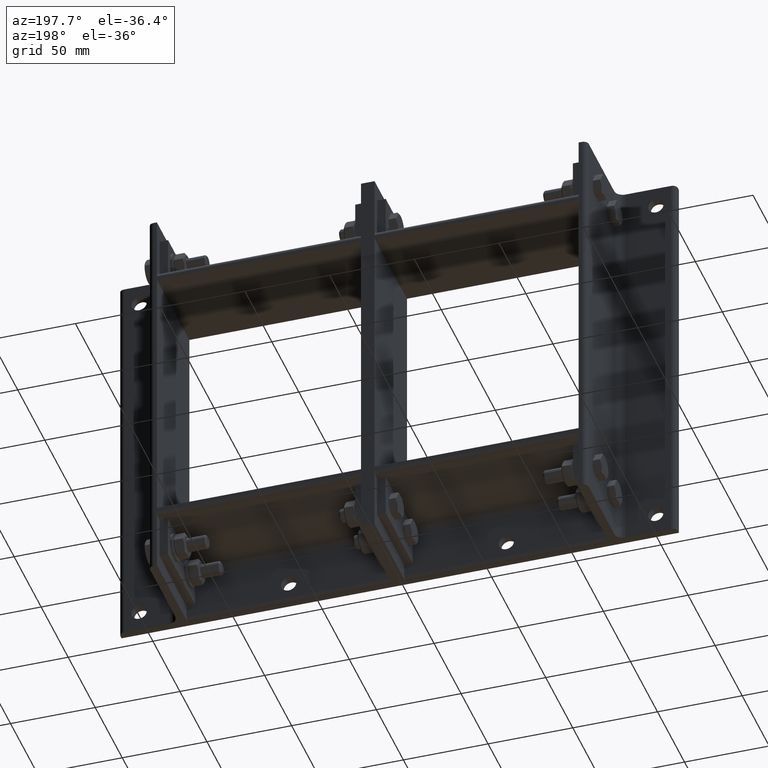
[diagram: clean part render]
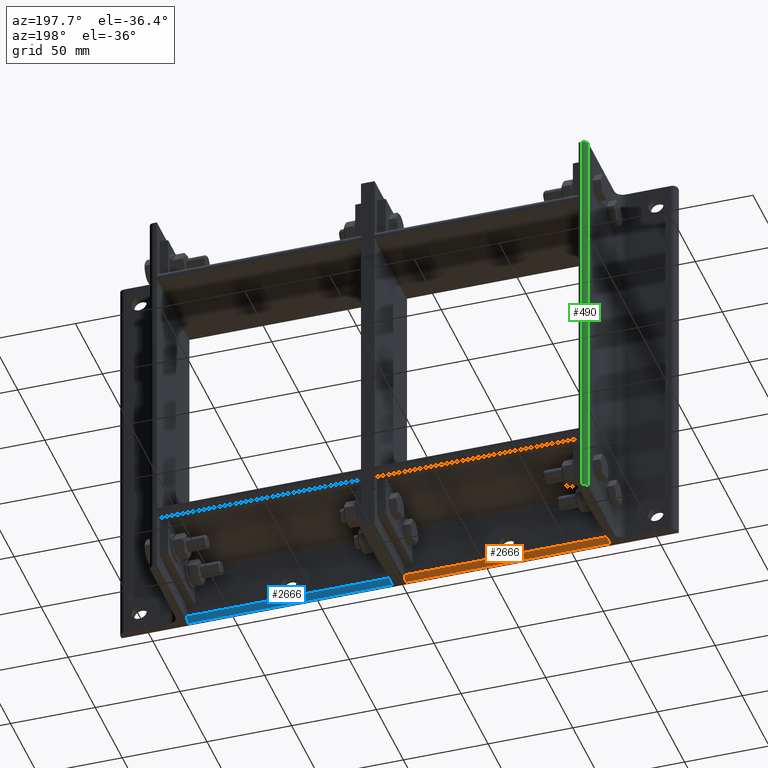
[diagram: same view with three faces highlighted in distinct colors, each labeled with its STEP entity id]
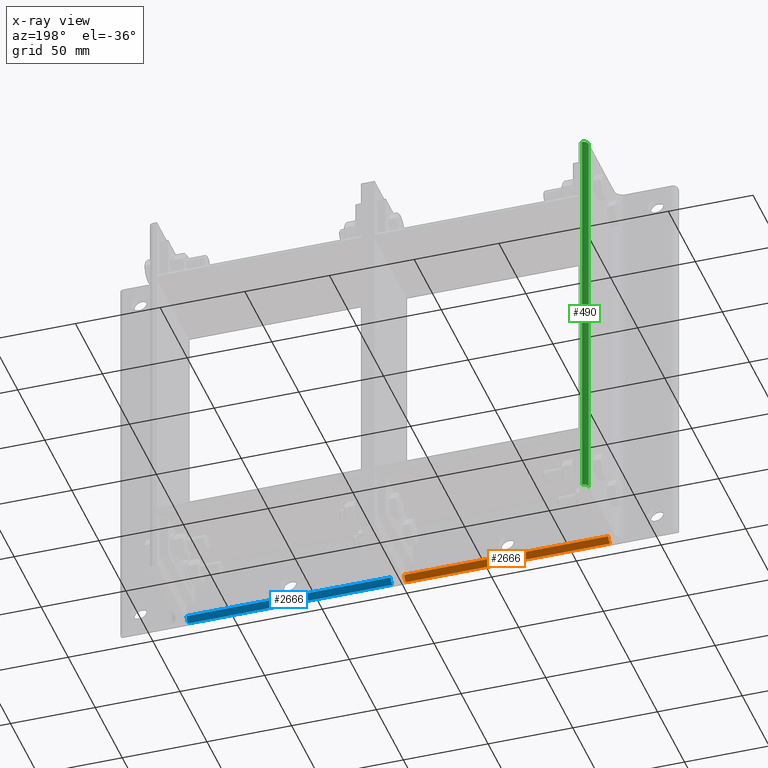
[diagram: x-ray of the same camera — body ghosted, the three highlighted faces saturated]
A machine part, auxiliary view with three faces highlighted in distinct colors.
The next image is the same camera in x-ray (body ghosted, the three faces saturated) — at least one of them is partly hidden behind the body in this view.
Their STEP definitions:

[orange] entity #2666 — the highlighted cylindrical surface (edge-blend (fillet) strip) has radius 3 mm, axis along (1, -0, 0).
#2460=CARTESIAN_POINT('',(37.0,4.999999999999999,120.5));
#2461=VERTEX_POINT('',#2460);
#2468=CARTESIAN_POINT('',(37.0,4.999999999999999,0.0));
#2469=VERTEX_POINT('',#2468);
#2470=CARTESIAN_POINT('',(37.0,4.999999999999999,0.0));
#2471=DIRECTION('',(0.0,0.0,1.0));
#2472=VECTOR('',#2471,120.5);
#2473=LINE('',#2470,#2472);
#2474=EDGE_CURVE('',#2469,#2461,#2473,.T.);
#2634=CARTESIAN_POINT('',(37.0,1.999999999999999,0.0));
#2635=DIRECTION('',(0.0,0.0,1.0));
#2636=DIRECTION('',(0.707106781186547,0.707106781186548,0.0));
#2637=AXIS2_PLACEMENT_3D('',#2634,#2635,#2636);
#2638=CYLINDRICAL_SURFACE('',#2637,3.0);
#2639=CARTESIAN_POINT('',(40.0,1.999999999999999,120.5));
#2640=VERTEX_POINT('',#2639);
#2641=CARTESIAN_POINT('',(37.0,1.999999999999999,120.5));
#2642=DIRECTION('',(0.0,0.0,-1.0));
#2643=DIRECTION('',(0.707106781186547,0.707106781186548,0.0));
#2644=AXIS2_PLACEMENT_3D('',#2641,#2642,#2643);
#2645=CIRCLE('',#2644,3.0);
#2646=EDGE_CURVE('',#2461,#2640,#2645,.T.);
#2647=ORIENTED_EDGE('',*,*,#2646,.T.);
#2648=CARTESIAN_POINT('',(40.0,1.999999999999999,0.0));
#2649=VERTEX_POINT('',#2648);
#2650=CARTESIAN_POINT('',(40.0,1.999999999999999,120.5));
#2651=DIRECTION('',(0.0,0.0,-1.0));
#2652=VECTOR('',#2651,120.5);
#2653=LINE('',#2650,#2652);
#2654=EDGE_CURVE('',#2640,#2649,#2653,.T.);
#2655=ORIENTED_EDGE('',*,*,#2654,.T.);
#2656=CARTESIAN_POINT('',(37.0,1.999999999999999,0.0));
#2657=DIRECTION('',(0.0,0.0,1.0));
#2658=DIRECTION('',(0.707106781186547,0.707106781186548,0.0));
#2659=AXIS2_PLACEMENT_3D('',#2656,#2657,#2658);
#2660=CIRCLE('',#2659,3.0);
#2661=EDGE_CURVE('',#2649,#2469,#2660,.T.);
#2662=ORIENTED_EDGE('',*,*,#2661,.T.);
#2663=ORIENTED_EDGE('',*,*,#2474,.T.);
#2664=EDGE_LOOP('',(#2647,#2655,#2662,#2663));
#2665=FACE_OUTER_BOUND('',#2664,.T.);
#2666=ADVANCED_FACE('',(#2665),#2638,.T.);

[blue] entity #2666 — the highlighted cylindrical surface (edge-blend (fillet) strip) has radius 3 mm, axis along (1, -0, 0).
#2460=CARTESIAN_POINT('',(37.0,4.999999999999999,120.5));
#2461=VERTEX_POINT('',#2460);
#2468=CARTESIAN_POINT('',(37.0,4.999999999999999,0.0));
#2469=VERTEX_POINT('',#2468);
#2470=CARTESIAN_POINT('',(37.0,4.999999999999999,0.0));
#2471=DIRECTION('',(0.0,0.0,1.0));
#2472=VECTOR('',#2471,120.5);
#2473=LINE('',#2470,#2472);
#2474=EDGE_CURVE('',#2469,#2461,#2473,.T.);
#2634=CARTESIAN_POINT('',(37.0,1.999999999999999,0.0));
#2635=DIRECTION('',(0.0,0.0,1.0));
#2636=DIRECTION('',(0.707106781186547,0.707106781186548,0.0));
#2637=AXIS2_PLACEMENT_3D('',#2634,#2635,#2636);
#2638=CYLINDRICAL_SURFACE('',#2637,3.0);
#2639=CARTESIAN_POINT('',(40.0,1.999999999999999,120.5));
#2640=VERTEX_POINT('',#2639);
#2641=CARTESIAN_POINT('',(37.0,1.999999999999999,120.5));
#2642=DIRECTION('',(0.0,0.0,-1.0));
#2643=DIRECTION('',(0.707106781186547,0.707106781186548,0.0));
#2644=AXIS2_PLACEMENT_3D('',#2641,#2642,#2643);
#2645=CIRCLE('',#2644,3.0);
#2646=EDGE_CURVE('',#2461,#2640,#2645,.T.);
#2647=ORIENTED_EDGE('',*,*,#2646,.T.);
#2648=CARTESIAN_POINT('',(40.0,1.999999999999999,0.0));
#2649=VERTEX_POINT('',#2648);
#2650=CARTESIAN_POINT('',(40.0,1.999999999999999,120.5));
#2651=DIRECTION('',(0.0,0.0,-1.0));
#2652=VECTOR('',#2651,120.5);
#2653=LINE('',#2650,#2652);
#2654=EDGE_CURVE('',#2640,#2649,#2653,.T.);
#2655=ORIENTED_EDGE('',*,*,#2654,.T.);
#2656=CARTESIAN_POINT('',(37.0,1.999999999999999,0.0));
#2657=DIRECTION('',(0.0,0.0,1.0));
#2658=DIRECTION('',(0.707106781186547,0.707106781186548,0.0));
#2659=AXIS2_PLACEMENT_3D('',#2656,#2657,#2658);
#2660=CIRCLE('',#2659,3.0);
#2661=EDGE_CURVE('',#2649,#2469,#2660,.T.);
#2662=ORIENTED_EDGE('',*,*,#2661,.T.);
#2663=ORIENTED_EDGE('',*,*,#2474,.T.);
#2664=EDGE_LOOP('',(#2647,#2655,#2662,#2663));
#2665=FACE_OUTER_BOUND('',#2664,.T.);
#2666=ADVANCED_FACE('',(#2665),#2638,.T.);

[green] entity #490 — the highlighted cylindrical surface (edge-blend (fillet) strip) has radius 3 mm, axis along (0, -0, -1).
#423=CARTESIAN_POINT('',(1.999999999999982,60.0,0.0));
#424=VERTEX_POINT('',#423);
#431=CARTESIAN_POINT('',(4.999999999999982,57.0,0.0));
#432=VERTEX_POINT('',#431);
#433=CARTESIAN_POINT('',(1.999999999999982,57.0,0.0));
#434=DIRECTION('',(0.0,0.0,1.0));
#435=DIRECTION('',(0.707106781186549,0.707106781186546,0.0));
#436=AXIS2_PLACEMENT_3D('',#433,#434,#435);
#437=CIRCLE('',#436,3.0);
#438=EDGE_CURVE('',#432,#424,#437,.T.);
#459=CARTESIAN_POINT('',(1.999999999999982,57.0,0.0));
#460=DIRECTION('',(0.0,0.0,1.0));
#461=DIRECTION('',(0.707106781186549,0.707106781186546,0.0));
#462=AXIS2_PLACEMENT_3D('',#459,#460,#461);
#463=CYLINDRICAL_SURFACE('',#462,3.0);
#464=CARTESIAN_POINT('',(1.999999999999982,60.0,239.50000000000003));
#465=VERTEX_POINT('',#464);
#466=CARTESIAN_POINT('',(4.999999999999982,57.0,239.50000000000003));
#467=VERTEX_POINT('',#466);
#468=CARTESIAN_POINT('',(1.999999999999982,57.0,239.50000000000003));
#469=DIRECTION('',(0.0,0.0,-1.0));
#470=DIRECTION('',(0.707106781186549,0.707106781186546,0.0));
#471=AXIS2_PLACEMENT_3D('',#468,#469,#470);
#472=CIRCLE('',#471,3.0);
#473=EDGE_CURVE('',#465,#467,#472,.T.);
#474=ORIENTED_EDGE('',*,*,#473,.T.);
#475=CARTESIAN_POINT('',(4.999999999999982,57.0,239.50000000000003));
#476=DIRECTION('',(0.0,0.0,-1.0));
#477=VECTOR('',#476,239.50000000000003);
#478=LINE('',#475,#477);
#479=EDGE_CURVE('',#467,#432,#478,.T.);
#480=ORIENTED_EDGE('',*,*,#479,.T.);
#481=ORIENTED_EDGE('',*,*,#438,.T.);
#482=CARTESIAN_POINT('',(1.999999999999982,60.0,0.0));
#483=DIRECTION('',(0.0,0.0,1.0));
#484=VECTOR('',#483,239.50000000000003);
#485=LINE('',#482,#484);
#486=EDGE_CURVE('',#424,#465,#485,.T.);
#487=ORIENTED_EDGE('',*,*,#486,.T.);
#488=EDGE_LOOP('',(#474,#480,#481,#487));
#489=FACE_OUTER_BOUND('',#488,.T.);
#490=ADVANCED_FACE('',(#489),#463,.T.);